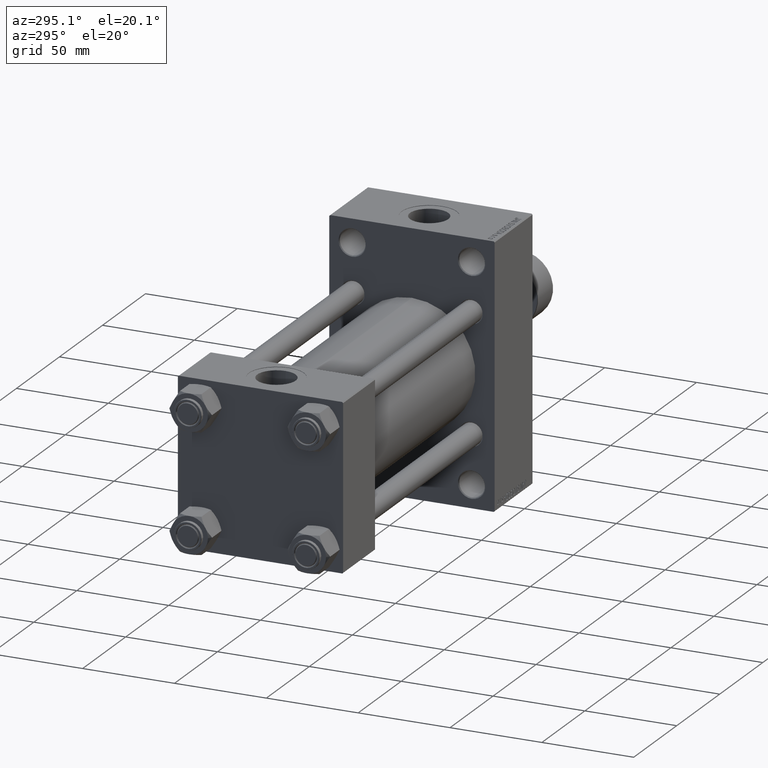
[diagram: clean part render]
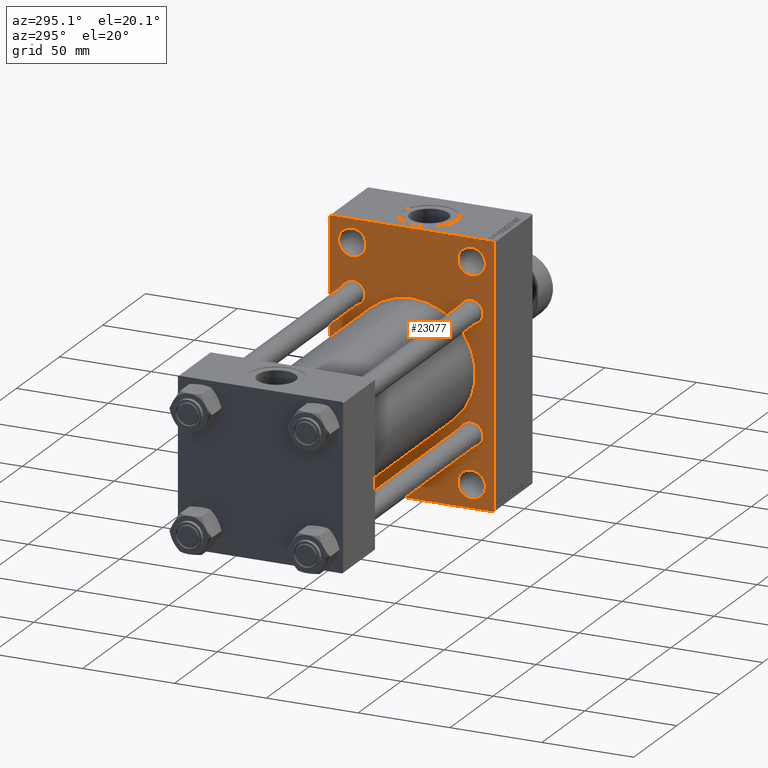
[diagram: same view with one face highlighted and labeled with its STEP entity id]
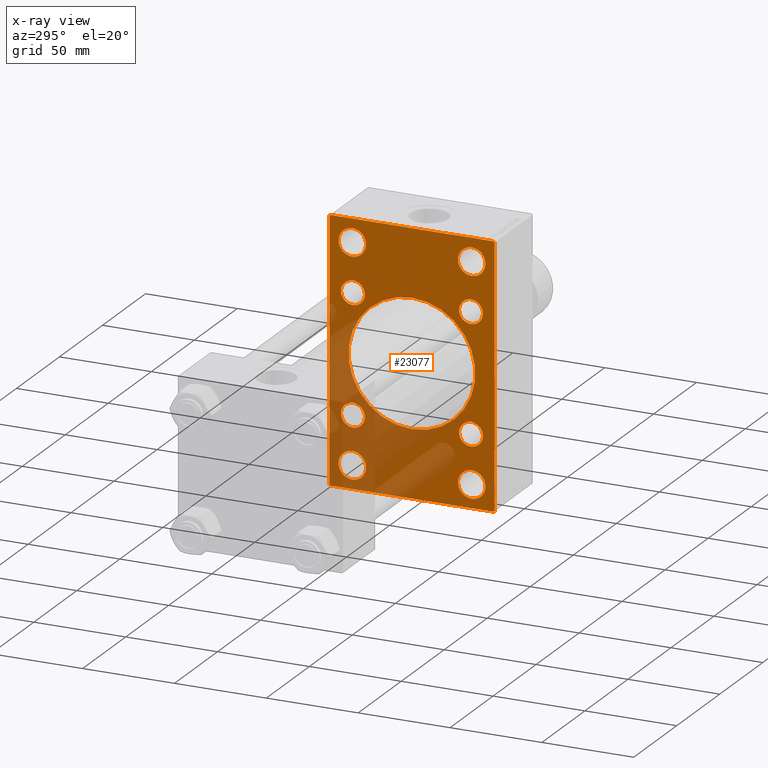
[diagram: x-ray of the same camera — body ghosted, the highlighted face saturated]
A machine part, auxiliary view. The second image highlights one B-rep face of the part: STEP entity #23077.
The next image is the same camera in x-ray: the body ghosted, the highlighted face saturated — about 31% of this face is hidden behind the body in this view.
In plain terms, the highlighted planar face has unit normal (-1, 0, 0).
Its self-contained STEP definition (entity closure, byte-faithful):
#97 = EDGE_CURVE ( 'NONE', #19248, #30728, #19543, .T. ) ;
#110 = ORIENTED_EDGE ( 'NONE', *, *, #37535, .F. ) ;
#248 = DIRECTION ( 'NONE',  ( 1.000000000000000000, 0.000000000000000000, 0.000000000000000000 ) ) ;
#585 = AXIS2_PLACEMENT_3D ( 'NONE', #19373, #35330, #27838 ) ;
#926 = CARTESIAN_POINT ( 'NONE',  ( 176.0000000000000284, -32.50000000000000000, 58.50000000000000711 ) ) ;
#1189 = EDGE_CURVE ( 'NONE', #41323, #25875, #5365, .T. ) ;
#1890 = CARTESIAN_POINT ( 'NONE',  ( 176.0000000000000284, 32.50000000000000711, -58.50000000000000000 ) ) ;
#1981 = DIRECTION ( 'NONE',  ( 0.000000000000000000, -1.000000000000000000, -1.541976423090495387E-16 ) ) ;
#2076 = EDGE_CURVE ( 'NONE', #10441, #23286, #39694, .T. ) ;
#2165 = CARTESIAN_POINT ( 'NONE',  ( 176.0000000000000284, 32.50000000000000711, -50.99999999999996447 ) ) ;
#2695 = CIRCLE ( 'NONE', #28211, 6.500000000000005329 ) ;
#2734 = CARTESIAN_POINT ( 'NONE',  ( 176.0000000000000284, -32.50000000000000000, -50.99999999999995026 ) ) ;
#2841 = CARTESIAN_POINT ( 'NONE',  ( 176.0000000000000284, 45.00000000000001421, -70.99999999999998579 ) ) ;
#3582 = AXIS2_PLACEMENT_3D ( 'NONE', #30808, #45588, #30324 ) ;
#3586 = CARTESIAN_POINT ( 'NONE',  ( 176.0000000000000284, -57.75000000000024869, 57.74999999999944578 ) ) ;
#3616 = CIRCLE ( 'NONE', #26829, 6.500000000000005329 ) ;
#4269 = AXIS2_PLACEMENT_3D ( 'NONE', #30896, #10225, #5682 ) ;
#4292 = CARTESIAN_POINT ( 'NONE',  ( 176.0000000000000284, 45.00000000000001421, -70.50000000000001421 ) ) ;
#4316 = CARTESIAN_POINT ( 'NONE',  ( 176.0000000000000284, -32.14999999999997726, -32.15000000000001279 ) ) ;
#4545 = ORIENTED_EDGE ( 'NONE', *, *, #10860, .T. ) ;
#4583 = DIRECTION ( 'NONE',  ( 0.000000000000000000, 0.000000000000000000, -1.000000000000000000 ) ) ;
#4608 = DIRECTION ( 'NONE',  ( 0.000000000000000000, 0.000000000000000000, 1.000000000000000000 ) ) ;
#4701 = VERTEX_POINT ( 'NONE', #30071 ) ;
#4763 = DIRECTION ( 'NONE',  ( -0.000000000000000000, 0.000000000000000000, 1.000000000000000000 ) ) ;
#5035 = AXIS2_PLACEMENT_3D ( 'NONE', #20114, #23753, #38280 ) ;
#5365 = LINE ( 'NONE', #20143, #29626 ) ;
#5613 = AXIS2_PLACEMENT_3D ( 'NONE', #32429, #47204, #41361 ) ;
#5682 = DIRECTION ( 'NONE',  ( 0.000000000000000000, 0.000000000000000000, 1.000000000000000000 ) ) ;
#6047 = CIRCLE ( 'NONE', #33110, 7.500000000000034639 ) ;
#6115 = ORIENTED_EDGE ( 'NONE', *, *, #19622, .T. ) ;
#6188 = ORIENTED_EDGE ( 'NONE', *, *, #20584, .T. ) ;
#6478 = LINE ( 'NONE', #2841, #8920 ) ;
#6722 = DIRECTION ( 'NONE',  ( 0.000000000000000000, -1.000000000000000000, -1.541976423090495633E-16 ) ) ;
#6929 = VERTEX_POINT ( 'NONE', #27780 ) ;
#7708 = CARTESIAN_POINT ( 'NONE',  ( 176.0000000000000284, 32.14999999999999147, 32.15000000000000568 ) ) ;
#7899 = ORIENTED_EDGE ( 'NONE', *, *, #28694, .T. ) ;
#8083 = AXIS2_PLACEMENT_3D ( 'NONE', #41575, #23159, #34044 ) ;
#8817 = VERTEX_POINT ( 'NONE', #4292 ) ;
#8888 = FACE_BOUND ( 'NONE', #46901, .T. ) ;
#8920 = VECTOR ( 'NONE', #6722, 1000.000000000000000 ) ;
#9157 = DIRECTION ( 'NONE',  ( 1.000000000000000000, -0.000000000000000000, 0.000000000000000000 ) ) ;
#9170 = DIRECTION ( 'NONE',  ( 0.000000000000000000, 0.000000000000000000, 1.000000000000000000 ) ) ;
#9196 = CIRCLE ( 'NONE', #28520, 6.500000000000005329 ) ;
#9487 = VECTOR ( 'NONE', #41614, 1000.000000000000000 ) ;
#9838 = DIRECTION ( 'NONE',  ( 0.000000000000000000, 0.000000000000000000, 1.000000000000000000 ) ) ;
#9847 = CIRCLE ( 'NONE', #585, 7.500000000000034639 ) ;
#10150 = DIRECTION ( 'NONE',  ( 0.000000000000000000, -4.886545002751570165E-17, -1.000000000000000000 ) ) ;
#10225 = DIRECTION ( 'NONE',  ( 1.000000000000000000, -0.000000000000000000, 0.000000000000000000 ) ) ;
#10407 = AXIS2_PLACEMENT_3D ( 'NONE', #21009, #9157, #35772 ) ;
#10441 = VERTEX_POINT ( 'NONE', #36662 ) ;
#10647 = EDGE_LOOP ( 'NONE', ( #19530, #4545 ) ) ;
#10814 = EDGE_LOOP ( 'NONE', ( #29417, #23075 ) ) ;
#10860 = EDGE_CURVE ( 'NONE', #35715, #27912, #25918, .T. ) ;
#10897 = ORIENTED_EDGE ( 'NONE', *, *, #1189, .T. ) ;
#11025 = EDGE_CURVE ( 'NONE', #35781, #6929, #29794, .T. ) ;
#11337 = CIRCLE ( 'NONE', #3582, 6.500000000000005329 ) ;
#11421 = CARTESIAN_POINT ( 'NONE',  ( 176.0000000000000284, 57.74999999999938893, -57.75000000000100187 ) ) ;
#11662 = DIRECTION ( 'NONE',  ( -0.000000000000000000, -0.7071067811865574537, -0.7071067811865376918 ) ) ;
#11844 = DIRECTION ( 'NONE',  ( 1.000000000000000000, -0.000000000000000000, 0.000000000000000000 ) ) ;
#11942 = AXIS2_PLACEMENT_3D ( 'NONE', #19516, #37677, #22187 ) ;
#12077 = AXIS2_PLACEMENT_3D ( 'NONE', #30692, #37464, #4763 ) ;
#12900 = EDGE_LOOP ( 'NONE', ( #47253, #40707 ) ) ;
#13041 = AXIS2_PLACEMENT_3D ( 'NONE', #19370, #37769, #4583 ) ;
#13557 = VECTOR ( 'NONE', #10150, 1000.000000000000000 ) ;
#13905 = AXIS2_PLACEMENT_3D ( 'NONE', #926, #41364, #19332 ) ;
#14022 = CARTESIAN_POINT ( 'NONE',  ( 176.0000000000000284, -44.49999999999989342, 70.99999999999998579 ) ) ;
#15552 = EDGE_LOOP ( 'NONE', ( #31720, #10897, #110, #24043, #43553, #40083, #25405, #46305 ) ) ;
#15688 = FACE_BOUND ( 'NONE', #33540, .T. ) ;
#15740 = EDGE_CURVE ( 'NONE', #31319, #28419, #36908, .T. ) ;
#15888 = EDGE_CURVE ( 'NONE', #30728, #19248, #9847, .T. ) ;
#16174 = FACE_OUTER_BOUND ( 'NONE', #15552, .T. ) ;
#16912 = CIRCLE ( 'NONE', #13041, 34.50000000000000000 ) ;
#17064 = EDGE_CURVE ( 'NONE', #24289, #23696, #37857, .T. ) ;
#17112 = CARTESIAN_POINT ( 'NONE',  ( 176.0000000000000284, 32.50000000000000711, 58.50000000000000711 ) ) ;
#17228 = AXIS2_PLACEMENT_3D ( 'NONE', #1890, #30966, #9170 ) ;
#17515 = EDGE_LOOP ( 'NONE', ( #46151, #18753 ) ) ;
#17525 = ORIENTED_EDGE ( 'NONE', *, *, #28311, .T. ) ;
#17984 = EDGE_CURVE ( 'NONE', #8817, #34386, #44135, .T. ) ;
#18657 = DIRECTION ( 'NONE',  ( 0.000000000000000000, 0.7071067811865672237, -0.7071067811865279218 ) ) ;
#18753 = ORIENTED_EDGE ( 'NONE', *, *, #20393, .T. ) ;
#18856 = CARTESIAN_POINT ( 'NONE',  ( 176.0000000000000284, 32.14999999999999147, 38.65000000000001279 ) ) ;
#19038 = CARTESIAN_POINT ( 'NONE',  ( 176.0000000000000284, -44.99999999999997158, 70.49999999999992895 ) ) ;
#19111 = DIRECTION ( 'NONE',  ( 0.000000000000000000, 0.000000000000000000, 1.000000000000000000 ) ) ;
#19248 = VERTEX_POINT ( 'NONE', #2165 ) ;
#19332 = DIRECTION ( 'NONE',  ( 0.000000000000000000, 0.000000000000000000, 1.000000000000000000 ) ) ;
#19370 = CARTESIAN_POINT ( 'NONE',  ( 176.0000000000000284, -2.602085213965210642E-15, 0.000000000000000000 ) ) ;
#19373 = CARTESIAN_POINT ( 'NONE',  ( 176.0000000000000284, 32.50000000000000711, -58.50000000000000000 ) ) ;
#19516 = CARTESIAN_POINT ( 'NONE',  ( 176.0000000000000284, 32.50000000000000711, 58.50000000000000711 ) ) ;
#19530 = ORIENTED_EDGE ( 'NONE', *, *, #42459, .T. ) ;
#19543 = CIRCLE ( 'NONE', #17228, 7.500000000000034639 ) ;
#19568 = VERTEX_POINT ( 'NONE', #19038 ) ;
#19607 = AXIS2_PLACEMENT_3D ( 'NONE', #4316, #11844, #19111 ) ;
#19622 = EDGE_CURVE ( 'NONE', #4701, #25115, #32802, .T. ) ;
#19710 = LINE ( 'NONE', #44912, #24055 ) ;
#20034 = FACE_BOUND ( 'NONE', #33628, .T. ) ;
#20114 = CARTESIAN_POINT ( 'NONE',  ( 176.0000000000000284, -32.50000000000000000, -58.49999999999999289 ) ) ;
#20143 = CARTESIAN_POINT ( 'NONE',  ( 176.0000000000000284, -57.74999999999933920, -57.75000000000093792 ) ) ;
#20393 = EDGE_CURVE ( 'NONE', #6929, #35781, #34394, .T. ) ;
#20584 = EDGE_CURVE ( 'NONE', #22436, #28570, #26654, .T. ) ;
#20977 = DIRECTION ( 'NONE',  ( 1.000000000000000000, -0.000000000000000000, 0.000000000000000000 ) ) ;
#21009 = CARTESIAN_POINT ( 'NONE',  ( 176.0000000000000284, 32.14999999999999147, 32.15000000000000568 ) ) ;
#21136 = EDGE_LOOP ( 'NONE', ( #6188, #31141 ) ) ;
#21264 = AXIS2_PLACEMENT_3D ( 'NONE', #7708, #47920, #40660 ) ;
#21468 = AXIS2_PLACEMENT_3D ( 'NONE', #27113, #248, #34126 ) ;
#21519 = EDGE_CURVE ( 'NONE', #34386, #41323, #6478, .T. ) ;
#21796 = CARTESIAN_POINT ( 'NONE',  ( 176.0000000000000284, -32.50000000000000000, 50.99999999999997868 ) ) ;
#22187 = DIRECTION ( 'NONE',  ( 0.000000000000000000, 0.000000000000000000, 1.000000000000000000 ) ) ;
#22414 = ORIENTED_EDGE ( 'NONE', *, *, #15740, .T. ) ;
#22436 = VERTEX_POINT ( 'NONE', #32766 ) ;
#22803 = EDGE_CURVE ( 'NONE', #24289, #35307, #26153, .T. ) ;
#22896 = DIRECTION ( 'NONE',  ( 0.000000000000000000, 0.000000000000000000, 1.000000000000000000 ) ) ;
#23075 = ORIENTED_EDGE ( 'NONE', *, *, #32773, .T. ) ;
#23077 = ADVANCED_FACE ( 'NONE', ( #8888, #30931, #34312, #15688, #45231, #42074, #23194, #45708, #20034, #16174 ), #41606, .T. ) ;
#23159 = DIRECTION ( 'NONE',  ( 1.000000000000000000, -0.000000000000000000, 0.000000000000000000 ) ) ;
#23160 = CIRCLE ( 'NONE', #13905, 7.500000000000034639 ) ;
#23194 = FACE_BOUND ( 'NONE', #21136, .T. ) ;
#23196 = CARTESIAN_POINT ( 'NONE',  ( 176.0000000000000284, -32.14999999999997726, 38.65000000000002700 ) ) ;
#23286 = VERTEX_POINT ( 'NONE', #39274 ) ;
#23696 = VERTEX_POINT ( 'NONE', #14022 ) ;
#23753 = DIRECTION ( 'NONE',  ( 1.000000000000000000, -0.000000000000000000, 0.000000000000000000 ) ) ;
#24043 = ORIENTED_EDGE ( 'NONE', *, *, #42516, .T. ) ;
#24055 = VECTOR ( 'NONE', #34475, 1000.000000000000000 ) ;
#24289 = VERTEX_POINT ( 'NONE', #34030 ) ;
#24473 = EDGE_CURVE ( 'NONE', #28570, #22436, #11337, .T. ) ;
#24707 = CARTESIAN_POINT ( 'NONE',  ( 176.0000000000000284, -32.50000000000000000, -66.00000000000002842 ) ) ;
#24825 = EDGE_CURVE ( 'NONE', #23286, #10441, #3616, .T. ) ;
#25115 = VERTEX_POINT ( 'NONE', #46560 ) ;
#25208 = CARTESIAN_POINT ( 'NONE',  ( 176.0000000000000284, -32.50000000000000000, 66.00000000000004263 ) ) ;
#25405 = ORIENTED_EDGE ( 'NONE', *, *, #46425, .T. ) ;
#25875 = VERTEX_POINT ( 'NONE', #32283 ) ;
#25918 = CIRCLE ( 'NONE', #5035, 7.500000000000041744 ) ;
#25922 = CIRCLE ( 'NONE', #4269, 7.500000000000034639 ) ;
#26153 = LINE ( 'NONE', #40942, #29084 ) ;
#26281 = DIRECTION ( 'NONE',  ( 1.000000000000000000, -0.000000000000000000, 0.000000000000000000 ) ) ;
#26498 = CIRCLE ( 'NONE', #5613, 7.500000000000041744 ) ;
#26654 = CIRCLE ( 'NONE', #8083, 6.500000000000005329 ) ;
#26829 = AXIS2_PLACEMENT_3D ( 'NONE', #27751, #31845, #38882 ) ;
#27113 = CARTESIAN_POINT ( 'NONE',  ( 176.0000000000000284, -2.602085213965210642E-15, 0.000000000000000000 ) ) ;
#27647 = CARTESIAN_POINT ( 'NONE',  ( 176.0000000000000284, 32.50000000000000711, -66.00000000000002842 ) ) ;
#27751 = CARTESIAN_POINT ( 'NONE',  ( 176.0000000000000284, -32.14999999999997726, -32.15000000000001279 ) ) ;
#27780 = CARTESIAN_POINT ( 'NONE',  ( 176.0000000000000284, 32.14999999999999147, 25.65000000000000213 ) ) ;
#27838 = DIRECTION ( 'NONE',  ( 0.000000000000000000, 0.000000000000000000, 1.000000000000000000 ) ) ;
#27912 = VERTEX_POINT ( 'NONE', #2734 ) ;
#28211 = AXIS2_PLACEMENT_3D ( 'NONE', #33918, #30289, #4608 ) ;
#28311 = EDGE_CURVE ( 'NONE', #28419, #31319, #16912, .T. ) ;
#28419 = VERTEX_POINT ( 'NONE', #32170 ) ;
#28520 = AXIS2_PLACEMENT_3D ( 'NONE', #29922, #26281, #22896 ) ;
#28570 = VERTEX_POINT ( 'NONE', #29489 ) ;
#28694 = EDGE_CURVE ( 'NONE', #25115, #4701, #6047, .T. ) ;
#29084 = VECTOR ( 'NONE', #18657, 1000.000000000000000 ) ;
#29417 = ORIENTED_EDGE ( 'NONE', *, *, #43736, .T. ) ;
#29484 = VERTEX_POINT ( 'NONE', #23196 ) ;
#29489 = CARTESIAN_POINT ( 'NONE',  ( 176.0000000000000284, 32.14999999999999147, -38.65000000000001279 ) ) ;
#29626 = VECTOR ( 'NONE', #41474, 999.9999999999998863 ) ;
#29794 = CIRCLE ( 'NONE', #21264, 6.499999999999999112 ) ;
#29922 = CARTESIAN_POINT ( 'NONE',  ( 176.0000000000000284, -32.14999999999997726, 32.15000000000001279 ) ) ;
#30071 = CARTESIAN_POINT ( 'NONE',  ( 176.0000000000000284, 32.50000000000000711, 66.00000000000004263 ) ) ;
#30174 = VERTEX_POINT ( 'NONE', #21796 ) ;
#30289 = DIRECTION ( 'NONE',  ( 1.000000000000000000, -0.000000000000000000, 0.000000000000000000 ) ) ;
#30324 = DIRECTION ( 'NONE',  ( 0.000000000000000000, 0.000000000000000000, 1.000000000000000000 ) ) ;
#30692 = CARTESIAN_POINT ( 'NONE',  ( 176.0000000000000284, 0.000000000000000000, 0.000000000000000000 ) ) ;
#30728 = VERTEX_POINT ( 'NONE', #27647 ) ;
#30808 = CARTESIAN_POINT ( 'NONE',  ( 176.0000000000000284, 32.14999999999999147, -32.15000000000000568 ) ) ;
#30884 = ORIENTED_EDGE ( 'NONE', *, *, #47584, .T. ) ;
#30896 = CARTESIAN_POINT ( 'NONE',  ( 176.0000000000000284, -32.50000000000000000, 58.50000000000000711 ) ) ;
#30931 = FACE_BOUND ( 'NONE', #10647, .T. ) ;
#30966 = DIRECTION ( 'NONE',  ( 1.000000000000000000, -0.000000000000000000, 0.000000000000000000 ) ) ;
#31141 = ORIENTED_EDGE ( 'NONE', *, *, #24473, .T. ) ;
#31319 = VERTEX_POINT ( 'NONE', #39613 ) ;
#31588 = VERTEX_POINT ( 'NONE', #25208 ) ;
#31720 = ORIENTED_EDGE ( 'NONE', *, *, #21519, .T. ) ;
#31845 = DIRECTION ( 'NONE',  ( 1.000000000000000000, -0.000000000000000000, 0.000000000000000000 ) ) ;
#32170 = CARTESIAN_POINT ( 'NONE',  ( 176.0000000000000284, -2.602085213965210642E-15, 34.50000000000000000 ) ) ;
#32283 = CARTESIAN_POINT ( 'NONE',  ( 176.0000000000000284, -44.99999999999997158, -70.49999999999995737 ) ) ;
#32429 = CARTESIAN_POINT ( 'NONE',  ( 176.0000000000000284, -32.50000000000000000, -58.49999999999999289 ) ) ;
#32495 = ORIENTED_EDGE ( 'NONE', *, *, #2076, .T. ) ;
#32766 = CARTESIAN_POINT ( 'NONE',  ( 176.0000000000000284, 32.14999999999999147, -25.64999999999999858 ) ) ;
#32773 = EDGE_CURVE ( 'NONE', #45622, #29484, #9196, .T. ) ;
#32802 = CIRCLE ( 'NONE', #11942, 7.500000000000034639 ) ;
#32972 = ORIENTED_EDGE ( 'NONE', *, *, #24825, .T. ) ;
#33110 = AXIS2_PLACEMENT_3D ( 'NONE', #17112, #20977, #9838 ) ;
#33408 = CARTESIAN_POINT ( 'NONE',  ( 176.0000000000000284, -44.49999999999988631, -71.00000000000000000 ) ) ;
#33540 = EDGE_LOOP ( 'NONE', ( #6115, #7899 ) ) ;
#33568 = ORIENTED_EDGE ( 'NONE', *, *, #35031, .T. ) ;
#33628 = EDGE_LOOP ( 'NONE', ( #17525, #22414 ) ) ;
#33918 = CARTESIAN_POINT ( 'NONE',  ( 176.0000000000000284, -32.14999999999997726, 32.15000000000001279 ) ) ;
#34030 = CARTESIAN_POINT ( 'NONE',  ( 176.0000000000000284, 44.49999999999999289, 71.00000000000000000 ) ) ;
#34044 = DIRECTION ( 'NONE',  ( 0.000000000000000000, 0.000000000000000000, 1.000000000000000000 ) ) ;
#34126 = DIRECTION ( 'NONE',  ( 0.000000000000000000, 0.000000000000000000, -1.000000000000000000 ) ) ;
#34312 = FACE_BOUND ( 'NONE', #12900, .T. ) ;
#34386 = VERTEX_POINT ( 'NONE', #47616 ) ;
#34394 = CIRCLE ( 'NONE', #10407, 6.499999999999999112 ) ;
#34475 = DIRECTION ( 'NONE',  ( 0.000000000000000000, 0.000000000000000000, -1.000000000000000000 ) ) ;
#34762 = EDGE_LOOP ( 'NONE', ( #32495, #32972 ) ) ;
#35031 = EDGE_CURVE ( 'NONE', #30174, #31588, #23160, .T. ) ;
#35307 = VERTEX_POINT ( 'NONE', #39761 ) ;
#35330 = DIRECTION ( 'NONE',  ( 1.000000000000000000, -0.000000000000000000, 0.000000000000000000 ) ) ;
#35395 = VECTOR ( 'NONE', #1981, 1000.000000000000000 ) ;
#35715 = VERTEX_POINT ( 'NONE', #24707 ) ;
#35772 = DIRECTION ( 'NONE',  ( 0.000000000000000000, 0.000000000000000000, 1.000000000000000000 ) ) ;
#35781 = VERTEX_POINT ( 'NONE', #18856 ) ;
#36662 = CARTESIAN_POINT ( 'NONE',  ( 176.0000000000000284, -32.14999999999997726, -25.65000000000000568 ) ) ;
#36908 = CIRCLE ( 'NONE', #21468, 34.50000000000000000 ) ;
#37464 = DIRECTION ( 'NONE',  ( -1.000000000000000000, 0.000000000000000000, -0.000000000000000000 ) ) ;
#37474 = LINE ( 'NONE', #3586, #9487 ) ;
#37535 = EDGE_CURVE ( 'NONE', #19568, #25875, #19710, .T. ) ;
#37677 = DIRECTION ( 'NONE',  ( 1.000000000000000000, -0.000000000000000000, 0.000000000000000000 ) ) ;
#37769 = DIRECTION ( 'NONE',  ( 1.000000000000000000, 0.000000000000000000, 0.000000000000000000 ) ) ;
#37857 = LINE ( 'NONE', #38806, #35395 ) ;
#38280 = DIRECTION ( 'NONE',  ( 0.000000000000000000, 0.000000000000000000, 1.000000000000000000 ) ) ;
#38806 = CARTESIAN_POINT ( 'NONE',  ( 176.0000000000000284, 45.00000000000002132, 71.00000000000000000 ) ) ;
#38882 = DIRECTION ( 'NONE',  ( 0.000000000000000000, 0.000000000000000000, 1.000000000000000000 ) ) ;
#39274 = CARTESIAN_POINT ( 'NONE',  ( 176.0000000000000284, -32.14999999999997726, -38.65000000000001990 ) ) ;
#39613 = CARTESIAN_POINT ( 'NONE',  ( 176.0000000000000284, 1.622946243093158675E-15, -34.50000000000000000 ) ) ;
#39694 = CIRCLE ( 'NONE', #19607, 6.500000000000005329 ) ;
#39761 = CARTESIAN_POINT ( 'NONE',  ( 176.0000000000000284, 45.00000000000002132, 70.50000000000000000 ) ) ;
#40083 = ORIENTED_EDGE ( 'NONE', *, *, #22803, .T. ) ;
#40660 = DIRECTION ( 'NONE',  ( 0.000000000000000000, 0.000000000000000000, 1.000000000000000000 ) ) ;
#40707 = ORIENTED_EDGE ( 'NONE', *, *, #15888, .T. ) ;
#40942 = CARTESIAN_POINT ( 'NONE',  ( 176.0000000000000284, 57.74999999999875655, 57.75000000000196820 ) ) ;
#41323 = VERTEX_POINT ( 'NONE', #33408 ) ;
#41361 = DIRECTION ( 'NONE',  ( 0.000000000000000000, 0.000000000000000000, 1.000000000000000000 ) ) ;
#41364 = DIRECTION ( 'NONE',  ( 1.000000000000000000, -0.000000000000000000, 0.000000000000000000 ) ) ;
#41474 = DIRECTION ( 'NONE',  ( 0.000000000000000000, -0.7071067811865574537, 0.7071067811865376918 ) ) ;
#41575 = CARTESIAN_POINT ( 'NONE',  ( 176.0000000000000284, 32.14999999999999147, -32.15000000000000568 ) ) ;
#41606 = PLANE ( 'NONE',  #12077 ) ;
#41614 = DIRECTION ( 'NONE',  ( -0.000000000000000000, 0.7071067811865426878, 0.7071067811865524577 ) ) ;
#42074 = FACE_BOUND ( 'NONE', #17515, .T. ) ;
#42459 = EDGE_CURVE ( 'NONE', #27912, #35715, #26498, .T. ) ;
#42516 = EDGE_CURVE ( 'NONE', #19568, #23696, #37474, .T. ) ;
#43340 = LINE ( 'NONE', #47676, #13557 ) ;
#43553 = ORIENTED_EDGE ( 'NONE', *, *, #17064, .F. ) ;
#43736 = EDGE_CURVE ( 'NONE', #29484, #45622, #2695, .T. ) ;
#44135 = LINE ( 'NONE', #11421, #46713 ) ;
#44758 = CARTESIAN_POINT ( 'NONE',  ( 176.0000000000000284, -32.14999999999997726, 25.65000000000000213 ) ) ;
#44912 = CARTESIAN_POINT ( 'NONE',  ( 176.0000000000000284, -44.99999999999997158, 70.99999999999998579 ) ) ;
#45231 = FACE_BOUND ( 'NONE', #10814, .T. ) ;
#45588 = DIRECTION ( 'NONE',  ( 1.000000000000000000, -0.000000000000000000, 0.000000000000000000 ) ) ;
#45622 = VERTEX_POINT ( 'NONE', #44758 ) ;
#45708 = FACE_BOUND ( 'NONE', #34762, .T. ) ;
#46151 = ORIENTED_EDGE ( 'NONE', *, *, #11025, .T. ) ;
#46305 = ORIENTED_EDGE ( 'NONE', *, *, #17984, .T. ) ;
#46425 = EDGE_CURVE ( 'NONE', #35307, #8817, #43340, .T. ) ;
#46560 = CARTESIAN_POINT ( 'NONE',  ( 176.0000000000000284, 32.50000000000000711, 50.99999999999997868 ) ) ;
#46713 = VECTOR ( 'NONE', #11662, 999.9999999999998863 ) ;
#46901 = EDGE_LOOP ( 'NONE', ( #30884, #33568 ) ) ;
#47204 = DIRECTION ( 'NONE',  ( 1.000000000000000000, -0.000000000000000000, 0.000000000000000000 ) ) ;
#47253 = ORIENTED_EDGE ( 'NONE', *, *, #97, .T. ) ;
#47584 = EDGE_CURVE ( 'NONE', #31588, #30174, #25922, .T. ) ;
#47616 = CARTESIAN_POINT ( 'NONE',  ( 176.0000000000000284, 44.50000000000004263, -70.99999999999998579 ) ) ;
#47676 = CARTESIAN_POINT ( 'NONE',  ( 176.0000000000000284, 45.00000000000002132, 71.00000000000000000 ) ) ;
#47920 = DIRECTION ( 'NONE',  ( 1.000000000000000000, -0.000000000000000000, 0.000000000000000000 ) ) ;